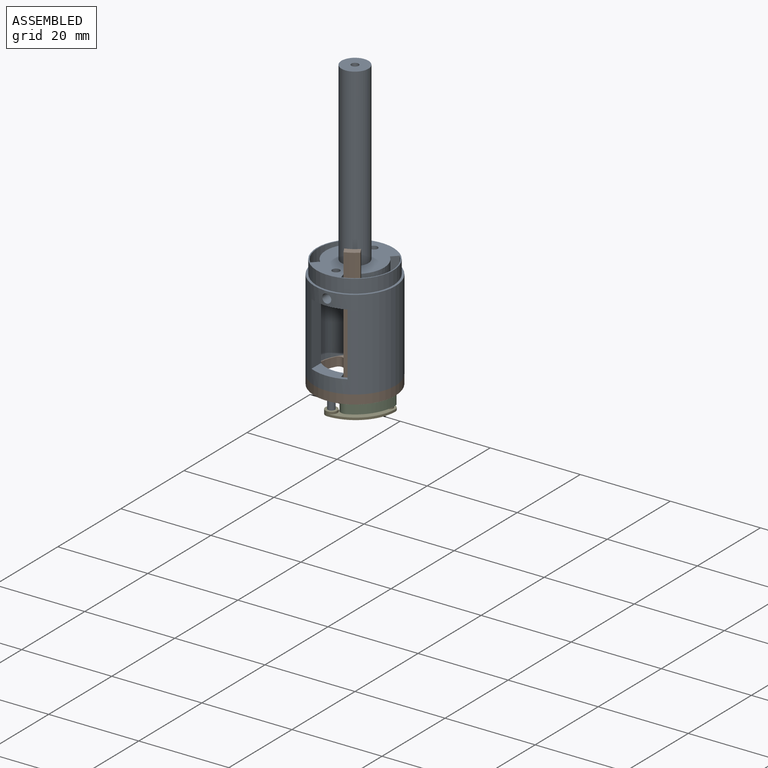
[diagram: assembled view]
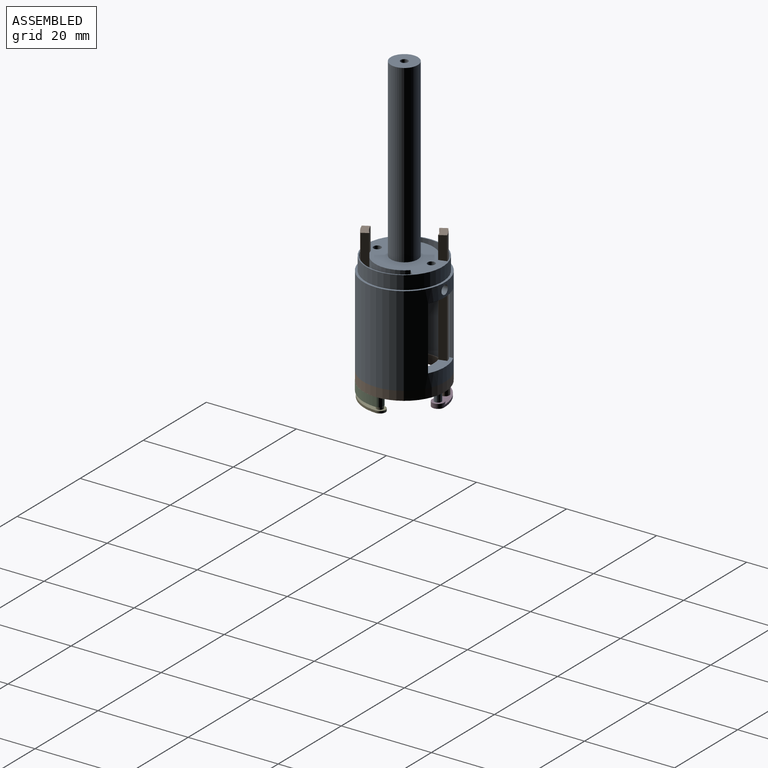
[diagram: assembled view, second angle]
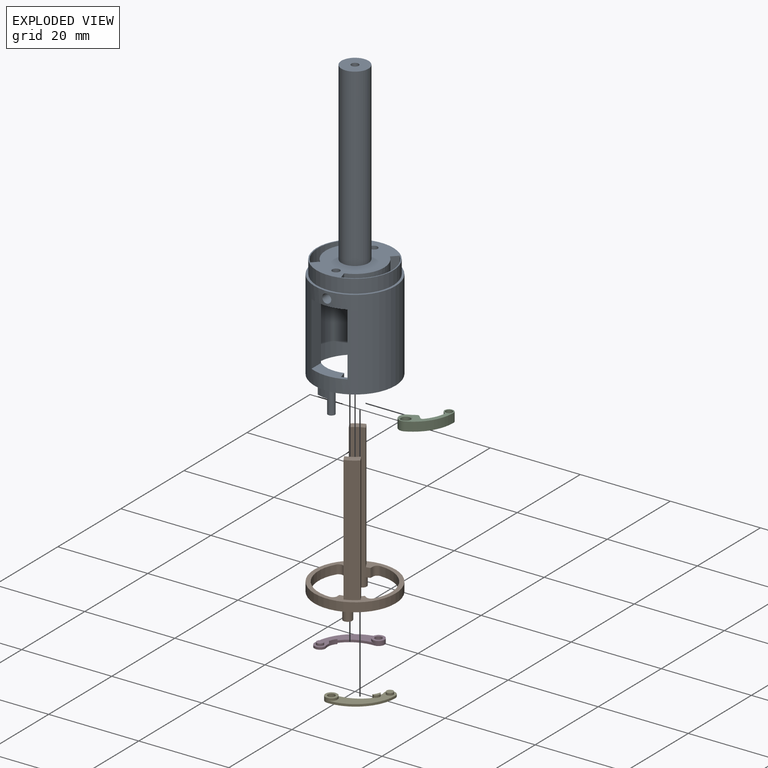
[diagram: exploded view]
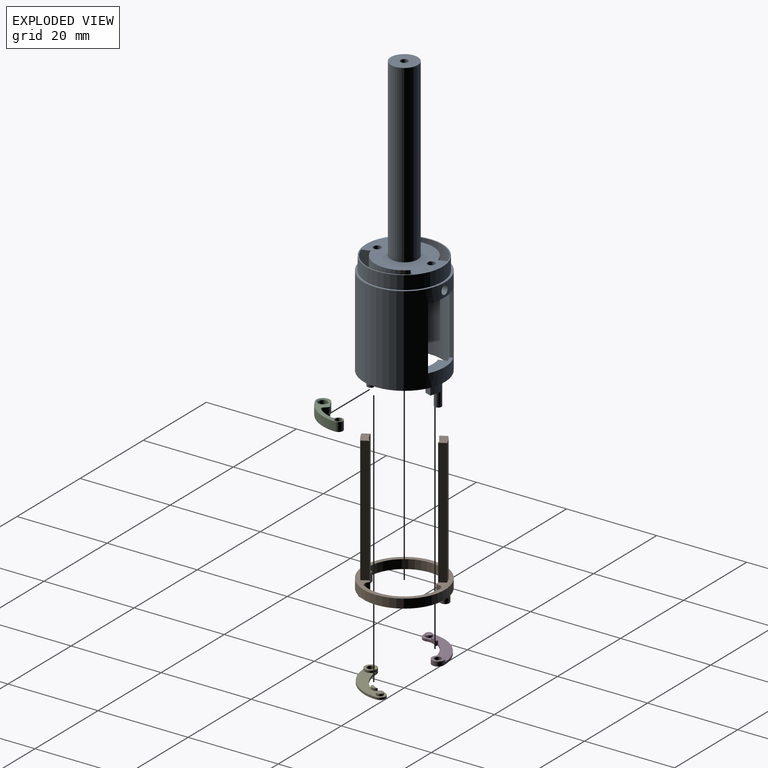
[diagram: exploded view, second angle]
ASSEMBLY  parts=5 mates=3
PART A: 47 faces, bbox 18x18x67.2 mm
  f0: plane 1.55x1.55mm, normal (0,0,-1), area 1.9mm2, adj f17
  f1: cylinder r=8.25mm len=2.82mm, axis (0,0,1), area 5.8mm2, adj f2,f15,f17,f46
  f2: plane 2x1.46mm, normal (-0.94,0.34,0), area 3.1mm2, adj f1,f3,f15,f46
  f3: cylinder r=6.7mm len=2.29mm, axis (0,0,1), area 4.7mm2, adj f2,f15,f17,f46
  f4: cylinder r=6.7mm len=2.29mm, axis (0,0,1), area 4.7mm2, adj f6,f15,f18,f44
  f5: cylinder r=8.25mm len=2.82mm, axis (0,0,1), area 5.8mm2, adj f6,f15,f18,f44
  f6: plane 2x1.46mm, normal (0.94,-0.34,0), area 3.1mm2, adj f4,f5,f15,f44
  f7: cylinder r=9mm len=20mm, axis (0,0,-1), area 892.5mm2, adj f15,f26,f32,f33,f34,f35,f36,f37
  f8: cylinder r=6.45mm len=20mm, axis (0,0,-1), area 48.5mm2, adj f12,f15,f16,f22,f24,f31,f32,f34
  f9: cylinder r=6.45mm len=20mm, axis (0,0,-1), area 48.5mm2, adj f10,f15,f16,f21,f25,f30,f37,f38
  f10: plane 6x1.72mm, normal (0.96,0.3,0), area 10.8mm2, adj f9,f11,f14,f20,f37
  f11: cylinder r=8.25mm len=23mm, axis (0,0,-1), area 366.3mm2, adj f10,f14,f15,f21,f22,f36,f37,f39
  f12: plane 6x1.72mm, normal (-0.96,-0.3,0), area 10.8mm2, adj f8,f13,f14,f23,f34
  f13: cylinder r=8.25mm len=23mm, axis (0,0,-1), area 366.3mm2, adj f12,f14,f15,f24,f25,f32,f33,f34
  f14: plane 17x17mm, normal (0,0,1), area 139.9mm2, adj f10,f11,f12,f13,f20,f22,f23,f25
  f15: plane 18x18mm, normal (0,0,-1), area 59.4mm2, adj f1,f2,f3,f4,f5,f6,f7,f8
  f16: plane 12.9x12.82mm, normal (0,0,-1), area 81.3mm2, adj f8,f9,f20,f23,f30,f31,f41
  f17: cylinder r=0.78mm len=5.2mm, axis (0,0,1), area 20.5mm2, adj f0,f1,f3,f15,f46
  f18: cylinder r=0.78mm len=5.2mm, axis (0,0,1), area 12.7mm2, adj f4,f5,f15,f19,f45
  f19: plane 1.55x1.55mm, normal (0,0,-1), area 1.9mm2, adj f18,f45
  f20: cylinder r=6.45mm len=10.72mm, axis (0,0,-1), area 39.8mm2, adj f10,f14,f16,f22
  f21: plane 3x1.72mm, normal (0.96,0.3,0), area 5.4mm2, adj f9,f11,f15,f39
  f22: plane 23x1.27mm, normal (0.71,-0.71,0), area 41.4mm2, adj f8,f11,f14,f15,f20
  f23: cylinder r=6.45mm len=10.72mm, axis (0,0,-1), area 39.8mm2, adj f12,f14,f16,f25
  f24: plane 3x1.72mm, normal (-0.96,-0.3,0), area 5.4mm2, adj f8,f13,f15,f32
  f25: plane 23x1.27mm, normal (-0.71,0.71,0), area 41.4mm2, adj f9,f13,f14,f15,f23
  f26: plane 18x18mm, normal (0,0,1), area 27.5mm2, adj f7,f27
  f27: cylinder r=8.5mm len=17mm, axis (0,0,1), area 160.2mm2, adj f14,f26
  f28: cylinder r=3mm len=39mm, axis (0,0,-1), area 735.1mm2, adj f14,f29
  f29: plane 6x6mm, normal (0,0,1), area 26.2mm2, adj f28,f40
  f30: cylinder r=0.84mm len=3.81mm, axis (0,0,1), area 16.8mm2, adj f9,f14,f16,f43
  f31: cylinder r=0.84mm len=3.81mm, axis (0,0,1), area 16.8mm2, adj f8,f14,f16,f42
  f32: plane 8x3.94mm, normal (0,0,1), area 17.8mm2, adj f7,f8,f13,f24,f33,f35
  f33: plane 14x0.85mm, normal (1,0,0), area 11.9mm2, adj f7,f13,f32,f34
  f34: plane 8x3.94mm, normal (0,0,-1), area 17.8mm2, adj f7,f8,f12,f13,f33,f35
  f35: plane 14x3mm, normal (-1,0,0), area 42mm2, adj f7,f8,f32,f34
  f36: plane 14x0.85mm, normal (-1,0,0), area 11.9mm2, adj f7,f11,f37,f39
  f37: plane 8x3.94mm, normal (0,0,-1), area 17.8mm2, adj f7,f9,f10,f11,f36,f38
  f38: plane 14x3mm, normal (1,0,0), area 42mm2, adj f7,f9,f37,f39
  f39: plane 8x3.94mm, normal (0,0,1), area 17.8mm2, adj f7,f9,f11,f21,f36,f38
  f40: cylinder r=0.82mm len=39mm, axis (0,0,1), area 200.9mm2, adj f29,f41
  f41: cone r=3.82mm half-angle=45deg, axis (0,0,-1), area 61.8mm2, adj f16,f40
  f42: cylinder r=1mm len=2.63mm, axis (0,-1,0), area 15.7mm2, adj f7,f8,f31
  f43: cylinder r=1mm len=2.63mm, axis (0,-1,0), area 15.7mm2, adj f7,f9,f30
  f44: plane 2.82x1.95mm, normal (0,0,-1), area 3.1mm2, adj f4,f5,f6,f45
  f45: extruded ~3.2x1.55mm, area 7.8mm2, adj f18,f19,f44
  f46: plane 2.82x1.95mm, normal (0,0,-1), area 3.1mm2, adj f1,f2,f3,f17
PART B: 27 faces, bbox 18x18x32.2 mm
  f0: plane 28x1.4mm, normal (-0.86,-0.52,0), area 45.9mm2, adj f2,f6,f7,f25
  f1: plane 28x1.4mm, normal (0.86,0.52,0), area 45.9mm2, adj f2,f6,f7,f25
  f2: plane 3.5x3.01mm, normal (0,0,1), area 5mm2, adj f0,f1,f7,f25
  f3: plane 28x1.4mm, normal (0.86,0.52,0), area 45.9mm2, adj f5,f6,f8,f26
  f4: plane 28x1.4mm, normal (-0.86,-0.52,0), area 45.9mm2, adj f5,f6,f8,f26
  f5: plane 3.5x3.01mm, normal (0,0,1), area 5mm2, adj f3,f4,f8,f26
  f6: plane 18x18mm, normal (0,0,1), area 59.4mm2, adj f0,f1,f3,f4,f7,f8,f10,f11
  f7: cylinder r=6.45mm len=30mm, axis (0,0,-1), area 97.2mm2, adj f0,f1,f2,f6,f9,f15,f19
  f8: cylinder r=6.45mm len=30mm, axis (0,0,-1), area 97.2mm2, adj f3,f4,f5,f6,f9,f14,f20
  f9: plane 18x18mm, normal (0,0,-1), area 63.2mm2, adj f7,f8,f10,f11,f12,f13,f14,f15
  f10: cylinder r=9mm len=18mm, axis (0,0,-1), area 113.1mm2, adj f6,f9
  f11: cylinder r=1mm len=2mm, axis (0,0,1), area 3.1mm2, adj f6,f9,f12,f14
  f12: cylinder r=8.05mm len=12.08mm, axis (0,0,1), area 33.7mm2, adj f6,f9,f11,f13
  f13: cylinder r=1mm len=2mm, axis (0,0,1), area 3.1mm2, adj f6,f9,f12,f15
  f14: plane 2x0.59mm, normal (-0.5,-0.87,0), area 1.4mm2, adj f6,f8,f9,f11
  f15: plane 2x0.68mm, normal (-1,0,0), area 1.4mm2, adj f6,f7,f9,f13
  f16: cylinder r=1mm len=2mm, axis (0,0,1), area 3.1mm2, adj f6,f9,f17,f19
  f17: cylinder r=8.05mm len=12.08mm, axis (0,0,1), area 33.7mm2, adj f6,f9,f16,f18
  f18: cylinder r=1mm len=2mm, axis (0,0,1), area 3.1mm2, adj f6,f9,f17,f20
  f19: plane 2x0.59mm, normal (0.5,0.87,0), area 1.4mm2, adj f6,f7,f9,f16
  f20: plane 2x0.68mm, normal (1,0,0), area 1.4mm2, adj f6,f8,f9,f18
  f21: cylinder r=1mm len=2.2mm, axis (0,0,1), area 13.8mm2, adj f9,f22
  f22: plane 2x2mm, normal (0,0,-1), area 3.1mm2, adj f21
  f23: cylinder r=1mm len=2.2mm, axis (0,0,1), area 13.8mm2, adj f9,f24
  f24: plane 2x2mm, normal (0,0,-1), area 3.1mm2, adj f23
  f25: cylinder r=8.05mm len=28mm, axis (0,0,1), area 87.4mm2, adj f0,f1,f2,f6
  f26: cylinder r=8.05mm len=28mm, axis (0,0,1), area 87.4mm2, adj f3,f4,f5,f6
PART C: 15 faces, bbox 7.3x9.3x2 mm
  f0: plane 2x0.62mm, normal (0.71,0.71,0), area 1.8mm2, adj f1,f10,f11,f12
  f1: cylinder r=0.5mm len=2mm, axis (0,0,-1), area 1.4mm2, adj f0,f2,f11,f12
  f2: cylinder r=9.72mm len=2mm, axis (0,0,-1), area 3.4mm2, adj f1,f3,f11,f12
  f3: cylinder r=1.5mm len=2.86mm, axis (0,0,-1), area 9.4mm2, adj f2,f4,f11,f12
  f4: cylinder r=9mm len=8.17mm, axis (0,0,-1), area 20.5mm2, adj f3,f5,f11,f12
  f5: cylinder r=1mm len=2mm, axis (0,0,-1), area 8.6mm2, adj f4,f6,f11,f12
  f6: cylinder r=0.5mm len=2mm, axis (0,0,-1), area 1.3mm2, adj f5,f7,f11,f12
  f7: cylinder r=8mm len=3.81mm, axis (0,0,-1), area 8.6mm2, adj f6,f10,f11,f12
  f8: cylinder r=1.01mm len=2.02mm, axis (0,0,-1), area 10.2mm2, adj f13,f14
  f9: cylinder r=0.75mm len=2mm, axis (0,0,-1), area 9.4mm2, adj f11,f12
  f10: cylinder r=0.5mm len=2mm, axis (0,0,-1), area 1.6mm2, adj f0,f7,f11,f12
  f11: plane 9.3x7.35mm, normal (0,0,1), area 14mm2, adj f0,f1,f2,f3,f4,f5,f6,f7
  f12: plane 9.3x7.35mm, normal (0,0,-1), area 14mm2, adj f0,f1,f2,f3,f4,f5,f6,f7
  f13: cone r=1.01mm half-angle=45deg, axis (0,0,1), area 2mm2, adj f8,f11
  f14: cone r=1.21mm half-angle=45deg, axis (0,0,-1), area 2mm2, adj f8,f12
PART D: 14 faces, bbox 10.3x10.1x1 mm
  f0: cylinder r=1.25mm len=2.5mm, axis (0,0,-1), area 2mm2, adj f2,f4,f8,f10
  f1: cylinder r=8mm len=6.32mm, axis (0,0,-1), area 3.7mm2, adj f5,f6,f8,f10
  f2: cylinder r=2.88mm len=2.83mm, axis (0,0,-1), area 2.4mm2, adj f0,f6,f8,f9,f10,f11
  f3: plane 2.65x2.65mm, normal (0,0,-1), area 3.6mm2, adj f5,f7
  f4: cylinder r=8.98mm len=9mm, axis (0,0,-1), area 6.9mm2, adj f0,f5,f8,f10
  f5: cylinder r=1.32mm len=2.65mm, axis (0,0,-1), area 6.2mm2, adj f1,f3,f4,f8,f10
  f6: plane 1x0.47mm, normal (-0.35,0.94,0), area 0.5mm2, adj f1,f2,f8,f9,f11
  f7: cylinder r=0.78mm len=1.55mm, axis (0,0,-1), area 4.9mm2, adj f3,f8
  f8: plane 10.33x10.05mm, normal (0,0,1), area 32.1mm2, adj f0,f1,f2,f4,f5,f6,f7
  f9: plane 1.69x1.13mm, normal (0,0,-1), area 0.9mm2, adj f2,f6,f11
  f10: plane 10.05x9mm, normal (0,0,-1), area 25.8mm2, adj f0,f1,f2,f4,f5,f11,f12
  f11: cylinder r=0.96mm len=1.69mm, axis (0,0,-1), area 1.1mm2, adj f2,f6,f9,f10
  f12: cylinder r=0.75mm len=1.5mm, axis (0,0,-1), area 2.4mm2, adj f10,f13
  f13: plane 1.5x1.5mm, normal (0,0,-1), area 1.8mm2, adj f12
PART E: same geometry as D
PLACE A t=(0,0,0.2)mm
PLACE B t=(0,0,-1.8)mm
PLACE C t=(0,0,-3.8)mm
PLACE D rot(axis=(0,1,0),180deg) t=(0,0,-4)mm
PLACE E rot(axis=(1,0,0),180deg) t=(0,0,-4)mm
MATE revolute B.f17 <-> A.f7  axis (0,0,1) through (0,0,0.2)mm
MATE revolute D.f7 <-> A.f18  axis (0,0,-1) through (0,7.47,-5)mm
MATE revolute E.f7 <-> A.f17  axis (0,0,-1) through (0,-7.48,-5)mm
